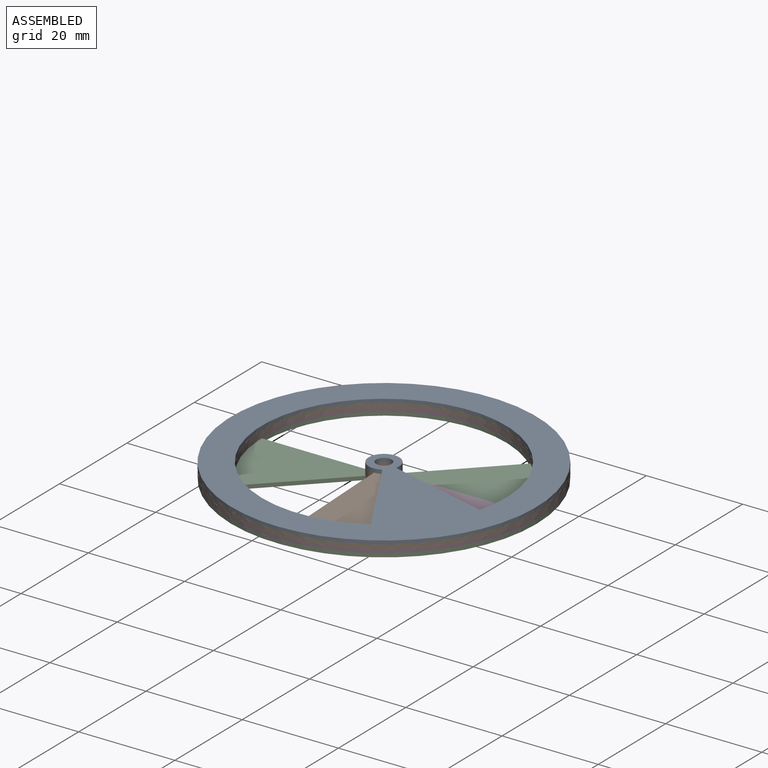
[diagram: assembled view]
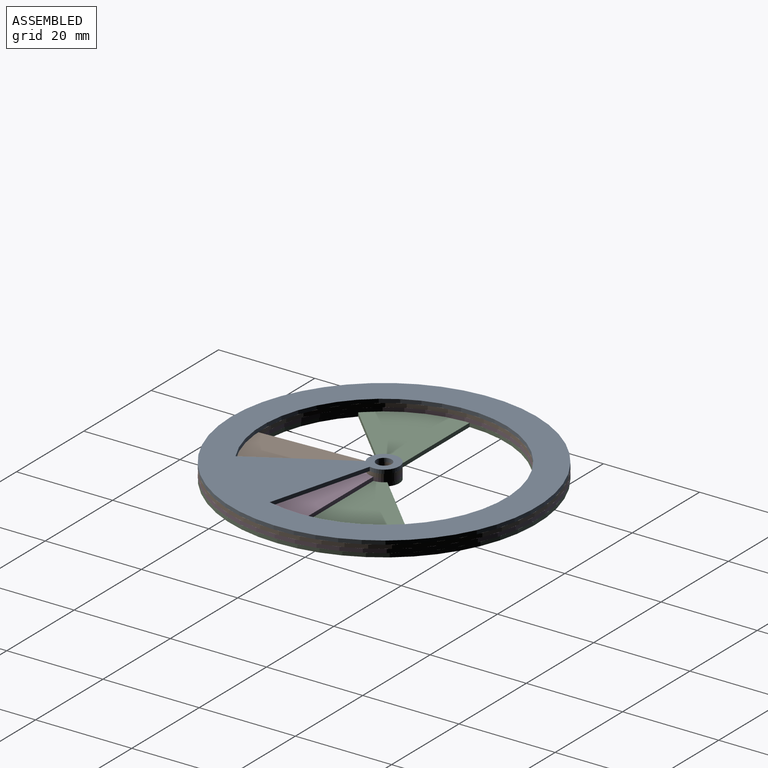
[diagram: assembled view, second angle]
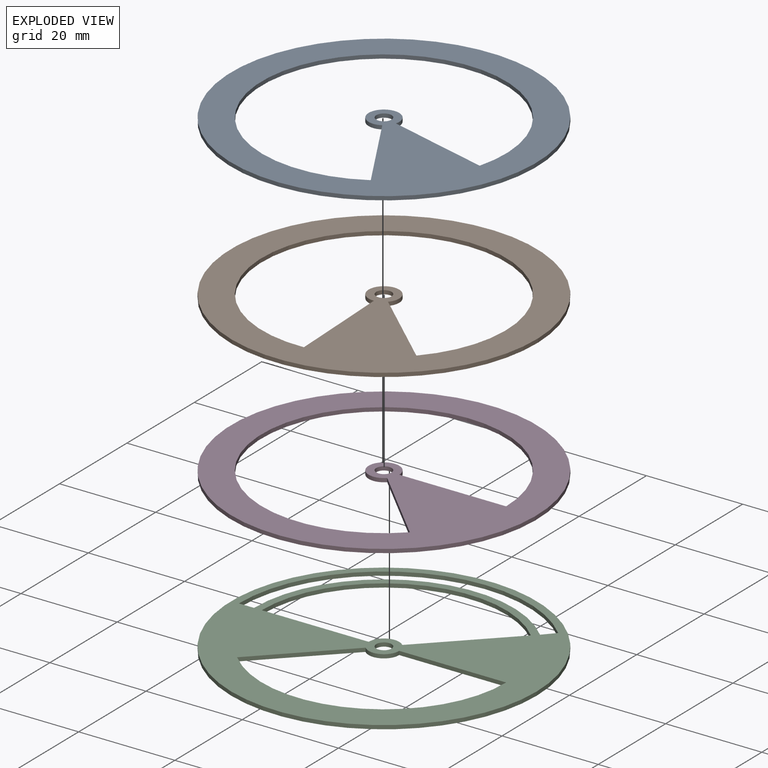
[diagram: exploded view]
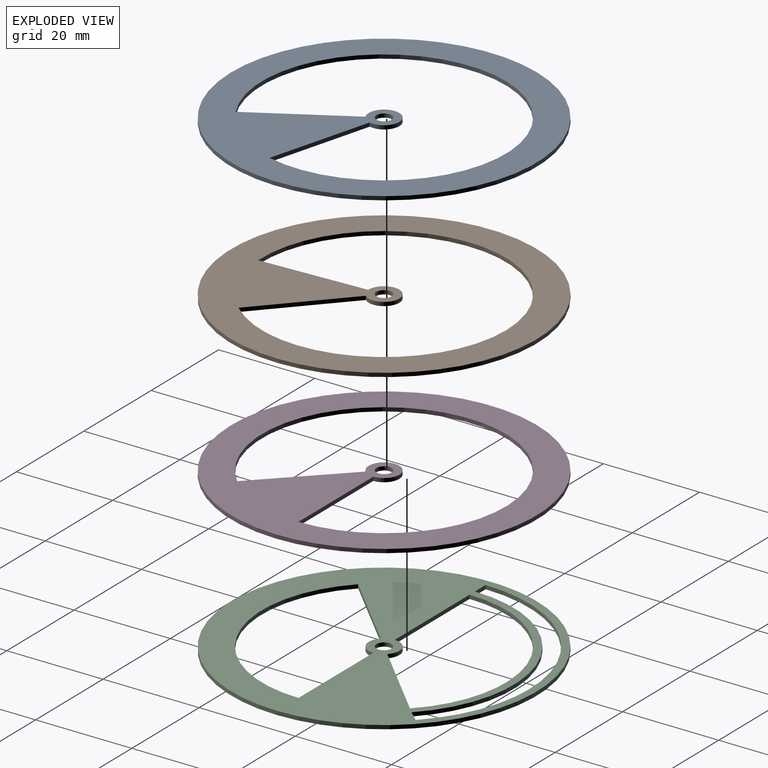
[diagram: exploded view, second angle]
ASSEMBLY  parts=4 mates=3
PART A: 8 faces, bbox 63.5x63.5x0.8 mm
  f0: plane 22.23x0.79mm, normal (0,-1,0), area 17.6mm2, adj f1,f4,f6,f7
  f1: cylinder r=25.4mm len=50.8mm, axis (0,0,-1), area 110.8mm2, adj f0,f2,f6,f7
  f2: plane 15.72x15.72mm, normal (-0.71,0.71,0), area 17.6mm2, adj f1,f4,f6,f7
  f3: cylinder r=1.59mm len=3.18mm, axis (0,0,-1), area 7.9mm2, adj f6,f7
  f4: cylinder r=3.17mm len=6.35mm, axis (0,0,-1), area 13.9mm2, adj f0,f2,f6,f7
  f5: cylinder r=31.75mm len=63.5mm, axis (0,0,-1), area 158.3mm2, adj f6,f7
  f6: plane 63.5x63.5mm, normal (0,0,1), area 1413.2mm2, adj f0,f1,f2,f3,f4,f5
  f7: plane 63.5x63.5mm, normal (0,0,-1), area 1413.2mm2, adj f0,f1,f2,f3,f4,f5
PART B: same geometry as A
PART C: 16 faces, bbox 63.5x63.5x0.8 mm
  f0: plane 15.72x15.72mm, normal (0.71,-0.71,0), area 17.6mm2, adj f1,f13,f14,f15
  f1: cylinder r=3.17mm len=5.42mm, axis (0,0,-1), area 5.9mm2, adj f0,f2,f14,f15
  f2: plane 22.23x0.79mm, normal (0,-1,0), area 17.6mm2, adj f1,f13,f14,f15
  f3: cylinder r=26.99mm len=46.07mm, axis (0,0,-1), area 50.5mm2, adj f4,f9,f14,f15
  f4: plane 3.18x0.79mm, normal (0,1,0), area 2.5mm2, adj f3,f5,f14,f15
  f5: cylinder r=30.16mm len=51.39mm, axis (0,0,-1), area 56.3mm2, adj f4,f9,f14,f15
  f6: cylinder r=25.4mm len=43.36mm, axis (0,0,-1), area 47.5mm2, adj f7,f12,f14,f15
  f7: plane 15.72x15.72mm, normal (-0.71,0.71,0), area 17.6mm2, adj f6,f8,f14,f15
  f8: cylinder r=3.17mm len=5.42mm, axis (0,0,-1), area 5.9mm2, adj f7,f12,f14,f15
  f9: plane 2.34x2.15mm, normal (-0.74,0.68,0), area 2.5mm2, adj f3,f5,f14,f15
  f10: cylinder r=31.75mm len=63.5mm, axis (0,0,-1), area 158.3mm2, adj f14,f15
  f11: cylinder r=1.59mm len=3.18mm, axis (0,0,-1), area 7.9mm2, adj f14,f15
  f12: plane 22.23x0.79mm, normal (0,1,0), area 17.6mm2, adj f6,f8,f14,f15
  f13: cylinder r=25.4mm len=43.36mm, axis (0,0,-1), area 47.5mm2, adj f0,f2,f14,f15
  f14: plane 63.5x63.5mm, normal (0,0,1), area 1449.1mm2, adj f0,f1,f2,f3,f4,f5,f6,f7
  f15: plane 63.5x63.5mm, normal (0,0,-1), area 1449.1mm2, adj f0,f1,f2,f3,f4,f5,f6,f7
PART D: same geometry as A
PLACE A rot(axis=(0,0,-1),60.1deg) t=(-14.53,-5.73,5.97)mm
PLACE B rot(axis=(0,0,-1),87.4deg) t=(-14.53,-5.73,5.17)mm
PLACE C t=(-14.53,-5.73,3.59)mm fixed
PLACE D rot(axis=(0,0,-1),45deg) t=(-14.53,-5.73,4.38)mm
MATE revolute B.f3 <-> D.f5  axis (0,0,-1) through (-14.53,-5.73,5.17)mm
MATE revolute A.f3 <-> B.f3  axis (0,0,-1) through (-14.53,-5.73,5.97)mm
MATE revolute C.f13 <-> D.f3  axis (0,0,1) through (-14.53,-5.73,4.38)mm
